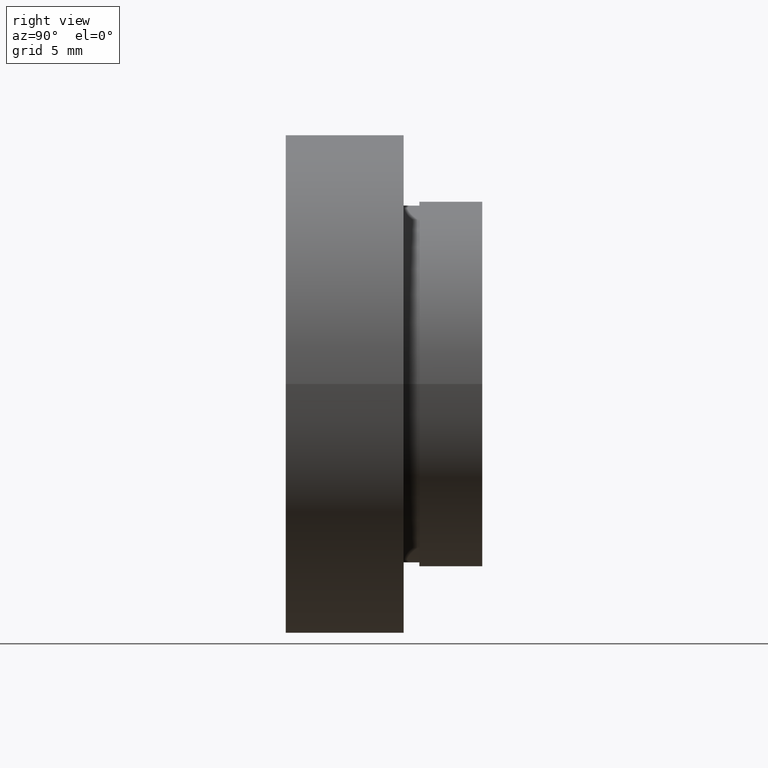
[diagram: clean part render]
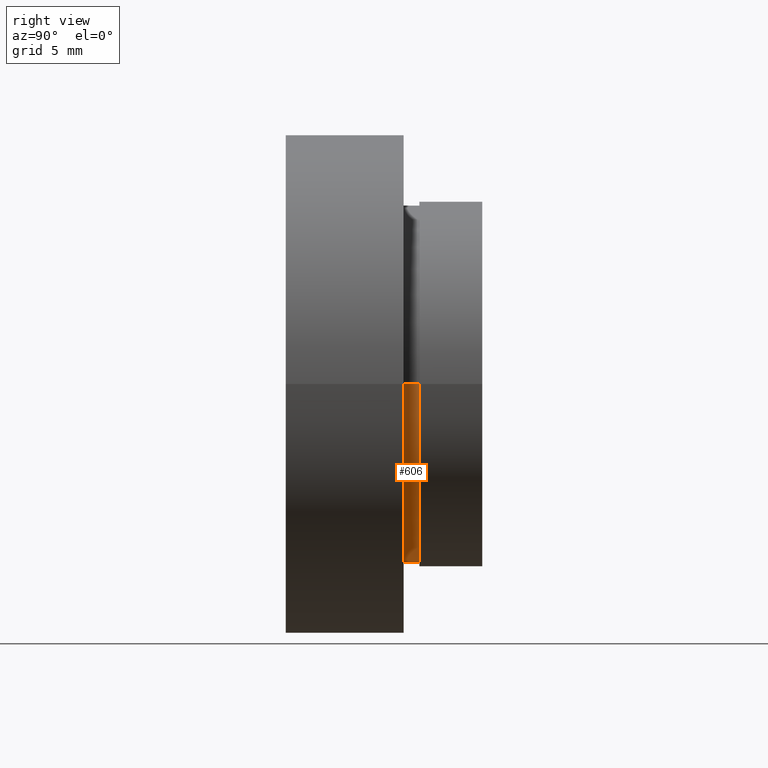
[diagram: same view with one face highlighted and labeled with its STEP entity id]
A machine part, right view. The second image highlights one B-rep face of the part: STEP entity #606.
In plain terms, the highlighted cylindrical surface (partial cylindrical patch) has radius 11.35 mm, axis along (-0, 1, -0).
Its self-contained STEP definition (entity closure, byte-faithful):
#38 = CARTESIAN_POINT ( 'NONE',  ( 1.149455719078122700E-015, 7.499999999999998200, 0.0000000000000000000 ) ) ;
#40 = ORIENTED_EDGE ( 'NONE', *, *, #326, .T. ) ;
#44 = CARTESIAN_POINT ( 'NONE',  ( 1.026991039163387700E-015, 8.499999999999998200, 0.0000000000000000000 ) ) ;
#70 = AXIS2_PLACEMENT_3D ( 'NONE', #38, #210, #106 ) ;
#106 = DIRECTION ( 'NONE',  ( -1.000000000000000000, -1.528390727732869900E-016, 0.0000000000000000000 ) ) ;
#123 = LINE ( 'NONE', #505, #240 ) ;
#157 = EDGE_CURVE ( 'NONE', #202, #266, #401, .T. ) ;
#162 = CARTESIAN_POINT ( 'NONE',  ( -11.34999999999999800, 8.499999999999996400, 0.0000000000000000000 ) ) ;
#180 = CIRCLE ( 'NONE', #494, 11.35000000000000000 ) ;
#201 = VERTEX_POINT ( 'NONE', #325 ) ;
#202 = VERTEX_POINT ( 'NONE', #261 ) ;
#210 = DIRECTION ( 'NONE',  ( -1.224646799147351000E-016, 1.000000000000000000, -0.0000000000000000000 ) ) ;
#219 = CARTESIAN_POINT ( 'NONE',  ( -11.35000000000000000, 16.88601823708207700, 0.0000000000000000000 ) ) ;
#240 = VECTOR ( 'NONE', #270, 1000.000000000000000 ) ;
#261 = CARTESIAN_POINT ( 'NONE',  ( -11.34999999999999800, 7.499999999999996400, 0.0000000000000000000 ) ) ;
#266 = VERTEX_POINT ( 'NONE', #162 ) ;
#270 = DIRECTION ( 'NONE',  ( -1.224646799147351000E-016, 1.000000000000000000, -0.0000000000000000000 ) ) ;
#273 = CIRCLE ( 'NONE', #70, 11.35000000000000000 ) ;
#288 = FACE_OUTER_BOUND ( 'NONE', #525, .T. ) ;
#325 = CARTESIAN_POINT ( 'NONE',  ( 11.35000000000000100, 7.500000000000000000, 1.389974117032245900E-015 ) ) ;
#326 = EDGE_CURVE ( 'NONE', #201, #202, #273, .T. ) ;
#328 = ORIENTED_EDGE ( 'NONE', *, *, #157, .T. ) ;
#337 = CARTESIAN_POINT ( 'NONE',  ( 0.0000000000000000000, 16.88601823708207700, 0.0000000000000000000 ) ) ;
#367 = AXIS2_PLACEMENT_3D ( 'NONE', #337, #463, #375 ) ;
#374 = DIRECTION ( 'NONE',  ( -1.224646799147351000E-016, 1.000000000000000000, -0.0000000000000000000 ) ) ;
#375 = DIRECTION ( 'NONE',  ( -1.000000000000000000, 0.0000000000000000000, 0.0000000000000000000 ) ) ;
#376 = EDGE_CURVE ( 'NONE', #595, #266, #180, .T. ) ;
#401 = LINE ( 'NONE', #219, #403 ) ;
#403 = VECTOR ( 'NONE', #429, 1000.000000000000000 ) ;
#429 = DIRECTION ( 'NONE',  ( -1.224646799147351000E-016, 1.000000000000000000, -0.0000000000000000000 ) ) ;
#450 = ORIENTED_EDGE ( 'NONE', *, *, #522, .F. ) ;
#463 = DIRECTION ( 'NONE',  ( -1.224646799147351000E-016, 1.000000000000000000, -0.0000000000000000000 ) ) ;
#494 = AXIS2_PLACEMENT_3D ( 'NONE', #44, #374, #545 ) ;
#505 = CARTESIAN_POINT ( 'NONE',  ( 11.35000000000000000, 16.88601823708207700, 1.389974117032245900E-015 ) ) ;
#522 = EDGE_CURVE ( 'NONE', #201, #595, #123, .T. ) ;
#525 = EDGE_LOOP ( 'NONE', ( #450, #40, #328, #603 ) ) ;
#539 = CARTESIAN_POINT ( 'NONE',  ( 11.35000000000000100, 8.500000000000000000, 1.389974117032245900E-015 ) ) ;
#545 = DIRECTION ( 'NONE',  ( -1.000000000000000000, -1.528390727732869900E-016, 0.0000000000000000000 ) ) ;
#595 = VERTEX_POINT ( 'NONE', #539 ) ;
#598 = CYLINDRICAL_SURFACE ( 'NONE', #367, 11.35000000000000000 ) ;
#603 = ORIENTED_EDGE ( 'NONE', *, *, #376, .F. ) ;
#606 = ADVANCED_FACE ( 'NONE', ( #288 ), #598, .T. ) ;